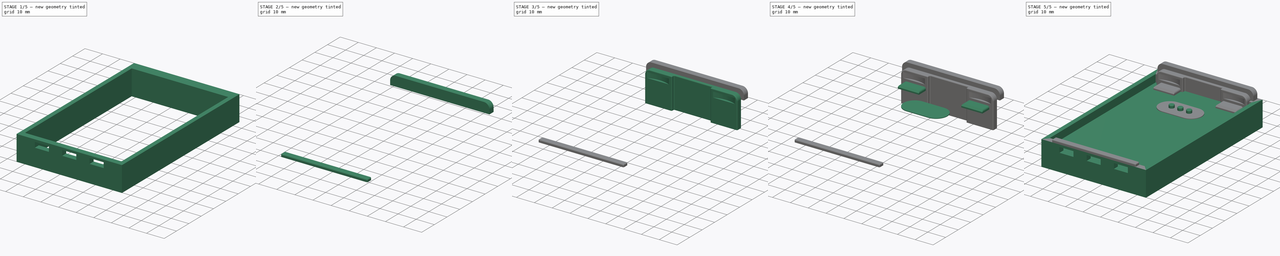
[diagram: build sequence overview — one tinted view per stage of 5, left to right]
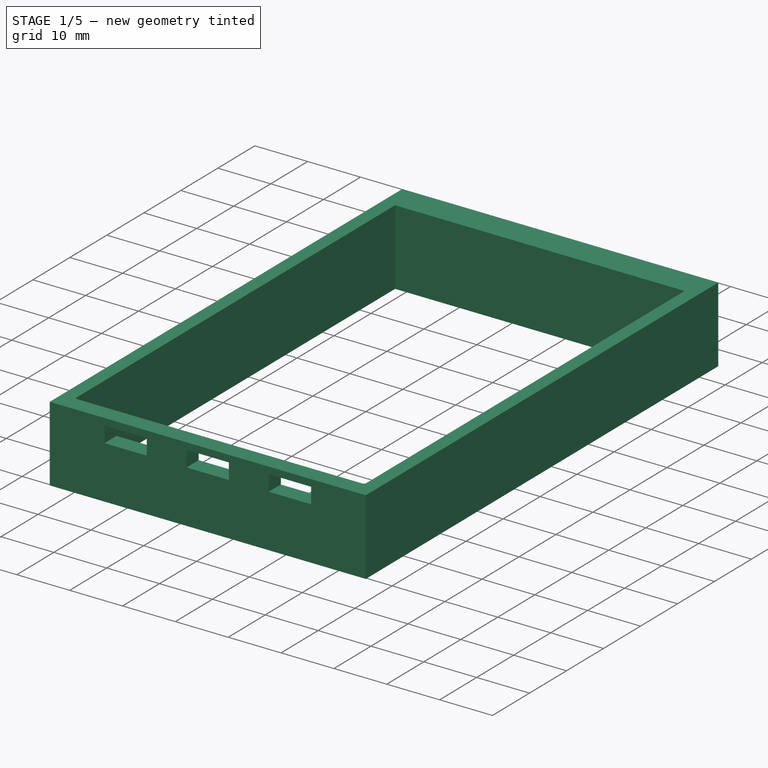
[diagram: stage 1 of 5 — iso view after this stage's code; geometry added in this stage tinted green]
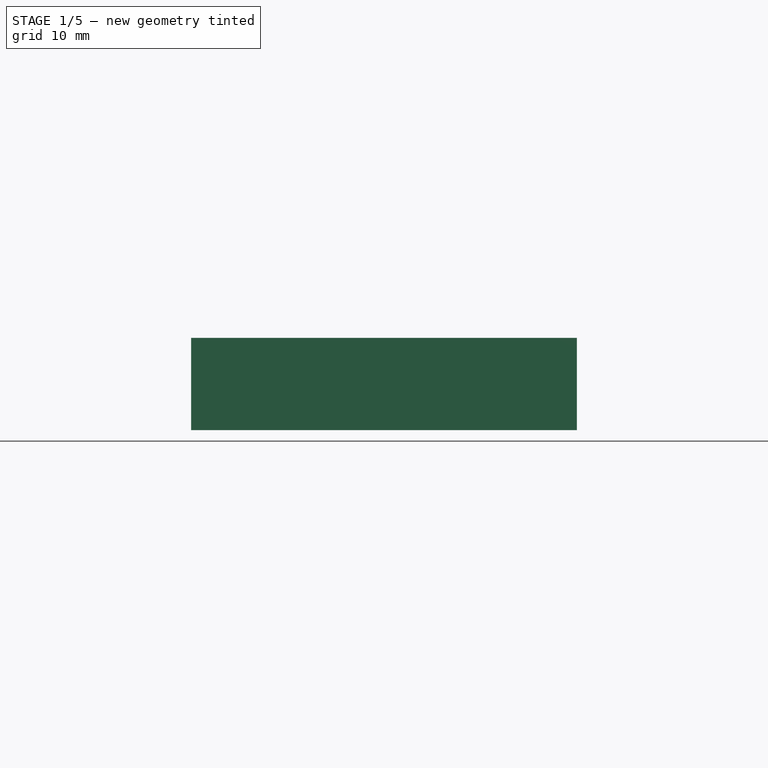
[diagram: stage 1 of 5 — front view after this stage's code; geometry added in this stage tinted green]
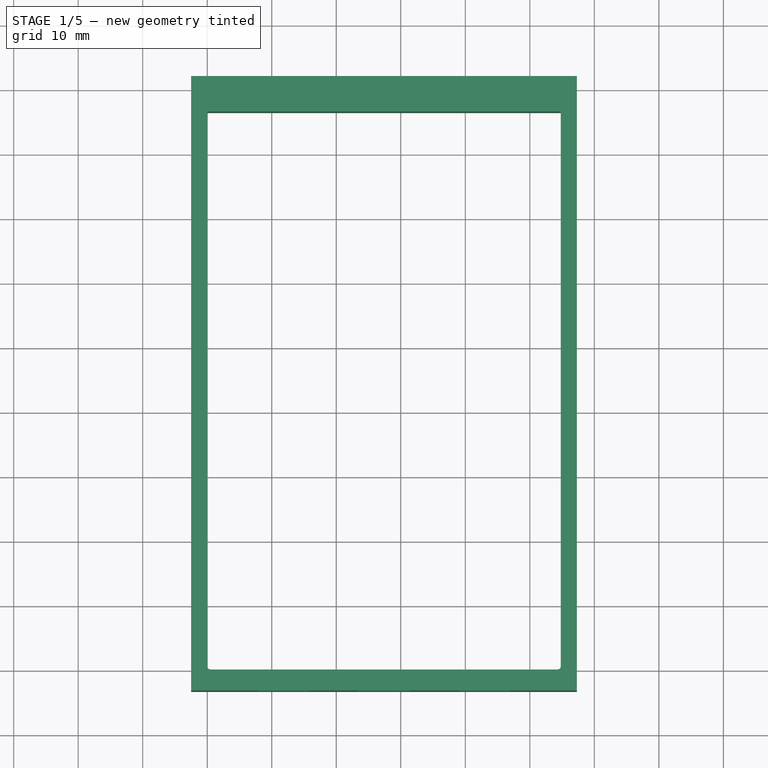
[diagram: stage 1 of 5 — top view after this stage's code; geometry added in this stage tinted green]
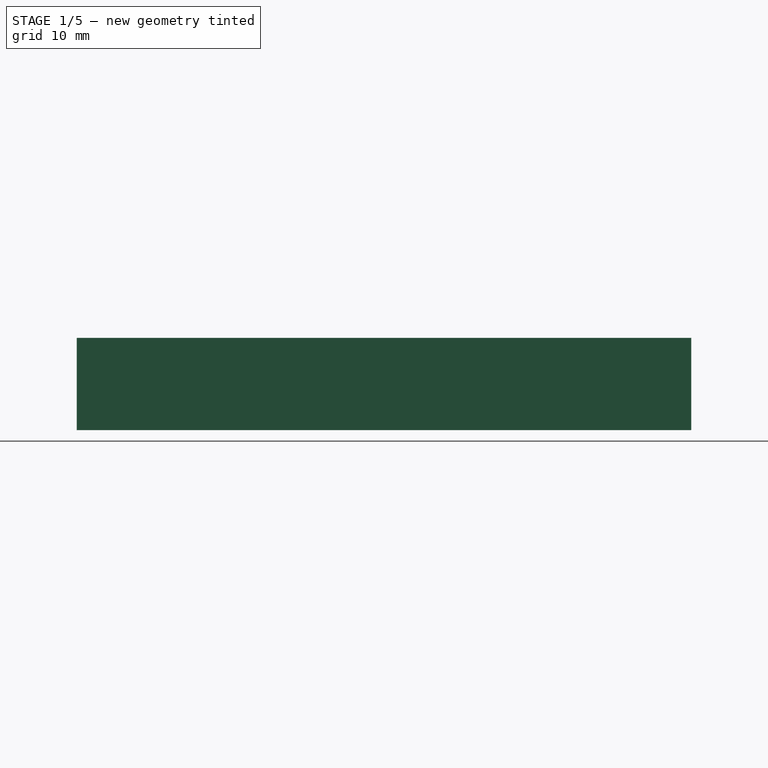
[diagram: stage 1 of 5 — right view after this stage's code; geometry added in this stage tinted green]
FCSTD DOCUMENT  (FreeCAD 0.19R24291 (Git))
Label: VX8Model
License: All rights reserved
LicenseURL: http://en.wikipedia.org/wiki/All_rights_reserved
objects: Part::Extrusion×11, Sketcher::SketchObject×10, Part::Fillet×7, Part::Cut×2, PartDesign::CoordinateSystem×2, Part::Chamfer×1, Part::Compound×1, PartDesign::FeatureBase×1, PartDesign::Body×1
note: 36 computed .brp shape members not serialized (recipe doc carries the construction recipe); baked Part::Feature solids carry a one-line shape summary decoded from their .brp

FEATURE [Sketcher::SketchObject] Sketch
  FullyConstrained = true
  sketch-geometry (4):
    g0: LineSegment StartX=0 StartY=0 StartZ=0 EndX=54.8 EndY=0 EndZ=0
    g1: LineSegment StartX=54.8 StartY=0 StartZ=0 EndX=54.8 EndY=86.5 EndZ=0
    g2: LineSegment StartX=54.8 StartY=86.5 StartZ=0 EndX=0 EndY=86.5 EndZ=0
    g3: LineSegment StartX=0 StartY=86.5 StartZ=0 EndX=0 EndY=0 EndZ=0
  constraints (11):
    c: Coincident(g0,g1)
    c: Coincident(g1,g2)
    c: Coincident(g2,g3)
    c: Coincident(g3,g0)
    c: Horizontal(g0)
    c: Horizontal(g2)
    c: Vertical(g1)
    c: Vertical(g3)
    c: Coincident(g0,g-1)
    c: DistanceY(g1,g1) = 86.5
    c: DistanceX(g0,g0) = 54.8
FEATURE [Part::Extrusion] Extrude
  Base = -> Sketch
  Dir = (0,0,1)
  DirMode = 2
  FaceMakerClass = Part::FaceMakerBullseye
  LengthFwd = 10
  LengthRev = 0
  Solid = true
  Symmetric = false
FEATURE [Sketcher::SketchObject] Sketch003
  ExternalGeometry = -> [Extrude]
  FullyConstrained = true
  MapMode = 5
  Placement = pos=(0,0,10) rot=(0,0,1;0rad)
  Support = -> [Extrude]
  sketch-geometry (8):
    g0: LineSegment StartX=-2.5 StartY=-3.25 StartZ=0 EndX=57.3 EndY=-3.25 EndZ=0
    g1: LineSegment StartX=57.3 StartY=-3.25 StartZ=0 EndX=57.3 EndY=92 EndZ=0
    g2: LineSegment StartX=57.3 StartY=92 StartZ=0 EndX=-2.5 EndY=92 EndZ=0
    g3: LineSegment StartX=-2.5 StartY=92 StartZ=0 EndX=-2.5 EndY=-3.25 EndZ=0
    g4: LineSegment StartX=0 StartY=0 StartZ=0 EndX=54.8 EndY=0 EndZ=0
    g5: LineSegment StartX=54.8 StartY=0 StartZ=0 EndX=54.8 EndY=86.5 EndZ=0
    g6: LineSegment StartX=54.8 StartY=86.5 StartZ=0 EndX=0 EndY=86.5 EndZ=0
    g7: LineSegment StartX=0 StartY=86.5 StartZ=0 EndX=0 EndY=0 EndZ=0
  constraints (22):
    c: Coincident(g0,g1)
    c: Coincident(g1,g2)
    c: Coincident(g2,g3)
    c: Coincident(g3,g0)
    c: Horizontal(g0)
    c: Horizontal(g2)
    c: Vertical(g1)
    c: Vertical(g3)
    c: Coincident(g4,g5)
    c: Coincident(g5,g6)
    c: Coincident(g6,g7)
    c: Coincident(g7,g4)
    c: Horizontal(g4)
    c: Horizontal(g6)
    c: Vertical(g5)
    c: Vertical(g7)
    c: Coincident(g4,g-1)
    c: Coincident(g5,g-3)
    c: DistanceY(g0,g4) = 3.25
    c: DistanceX(g0,g4) = 2.5
    c: DistanceX(g4,g0) = 2.5
    c: DistanceY(g5,g1) = 5.5
FEATURE [Part::Extrusion] Extrude004
  Base = -> Sketch003
  Dir = (0,0,1)
  DirMode = 2
  FaceMakerClass = Part::FaceMakerBullseye
  LengthFwd = 4.3
  LengthRev = 10
  Solid = true
  Symmetric = false
FEATURE [Sketcher::SketchObject] Sketch007
  ExternalGeometry = -> [Extrude004]
  FullyConstrained = true
  MapMode = 5
  Placement = pos=(0,0,0) rot=(0,0.707107,0.707107;3.14159rad)
  Support = -> [Extrude004]
  sketch-geometry (13):
    g0: GeomPoint X=-27.4 Y=0 Z=0
    g1: LineSegment StartX=-31.4 StartY=0 StartZ=0 EndX=-23.4 EndY=0 EndZ=0
    g2: LineSegment StartX=-23.4 StartY=0 StartZ=0 EndX=-23.4 EndY=3 EndZ=0
    g3: LineSegment StartX=-23.4 StartY=3 StartZ=0 EndX=-31.4 EndY=3 EndZ=0
    g4: LineSegment StartX=-31.4 StartY=3 StartZ=0 EndX=-31.4 EndY=0 EndZ=0
    g5: LineSegment StartX=-46.95 StartY=0 StartZ=0 EndX=-38.95 EndY=0 EndZ=0
    g6: LineSegment StartX=-38.95 StartY=0 StartZ=0 EndX=-38.95 EndY=3 EndZ=0
    g7: LineSegment StartX=-38.95 StartY=3 StartZ=0 EndX=-46.95 EndY=3 EndZ=0
    g8: LineSegment StartX=-46.95 StartY=3 StartZ=0 EndX=-46.95 EndY=0 EndZ=0
    g9: LineSegment StartX=-15.85 StartY=0 StartZ=0 EndX=-7.85 EndY=0 EndZ=0
    g10: LineSegment StartX=-7.85 StartY=0 StartZ=0 EndX=-7.85 EndY=3 EndZ=0
    g11: LineSegment StartX=-7.85 StartY=3 StartZ=0 EndX=-15.85 EndY=3 EndZ=0
    g12: LineSegment StartX=-15.85 StartY=3 StartZ=0 EndX=-15.85 EndY=0 EndZ=0
  constraints (35):
    c: Symmetric(g-5,g-6,g0)
    c: Coincident(g1,g2)
    c: Coincident(g2,g3)
    c: Coincident(g3,g4)
    c: Coincident(g4,g1)
    c: Horizontal(g1)
    c: Horizontal(g3)
    c: Vertical(g2)
    c: Vertical(g4)
    c: Coincident(g5,g6)
    c: Coincident(g6,g7)
    c: Coincident(g7,g8)
    c: Coincident(g8,g5)
    c: Horizontal(g5)
    c: Horizontal(g7)
    c: Vertical(g6)
    c: Vertical(g8)
    c: Coincident(g9,g10)
    c: Coincident(g10,g11)
    c: Coincident(g11,g12)
    c: Coincident(g12,g9)
    c: Horizontal(g9)
    c: Horizontal(g11)
    c: Vertical(g10)
    c: Vertical(g12)
    c: Horizontal(g-5,g5)
    c: Symmetric(g5,g9,g0)
    c: Symmetric(g1,g1,g0)
    c: Equal(g7,g3)
    c: Equal(g7,g11)
    c: Equal(g6,g4)
    c: Equal(g6,g12)
    c: DistanceX(g3,g3) = 8
    c: DistanceY(g2,g2) = 3
    c: DistanceX(g6,g11) = 23.1
FEATURE [Part::Extrusion] Extrude008
  Base = -> Sketch007
  Dir = (0,1,-2e-16)
  DirMode = 2
  FaceMakerClass = Part::FaceMakerBullseye
  LengthFwd = 2
  LengthRev = 10
  Placement = pos=(0,0,10) rot=(0,0,1;0rad)
  Solid = true
  Symmetric = false
FEATURE [Part::Cut] Cut001
  Base = -> Extrude004
  Tool = -> Extrude008
FEATURE [Part::Fillet] Fillet005
  Base = -> Cut001
  Edges = 2 edges r=0.5: [Edge57,Edge58]
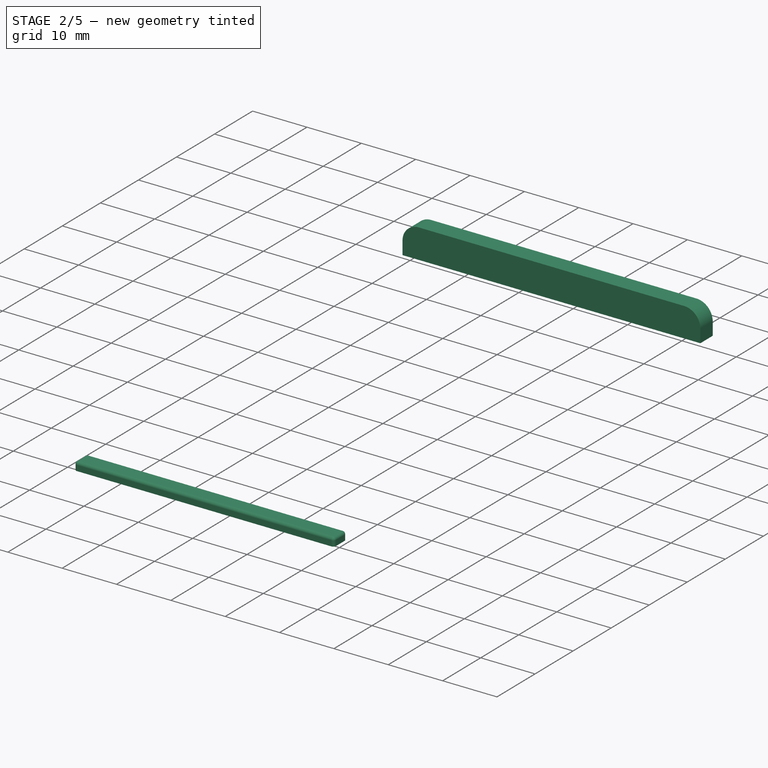
[diagram: stage 2 of 5 — iso view after this stage's code; geometry added in this stage tinted green]
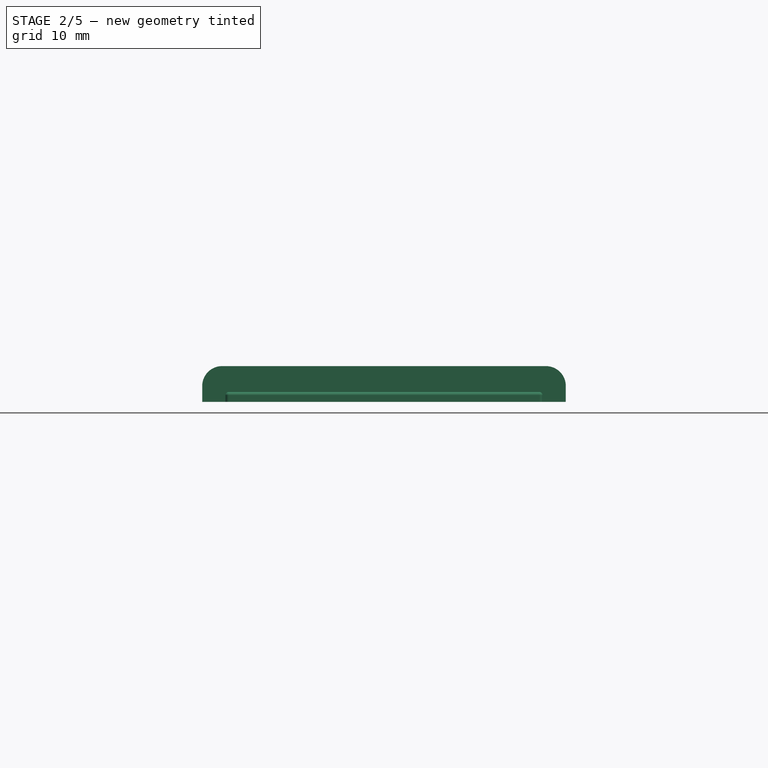
[diagram: stage 2 of 5 — front view after this stage's code; geometry added in this stage tinted green]
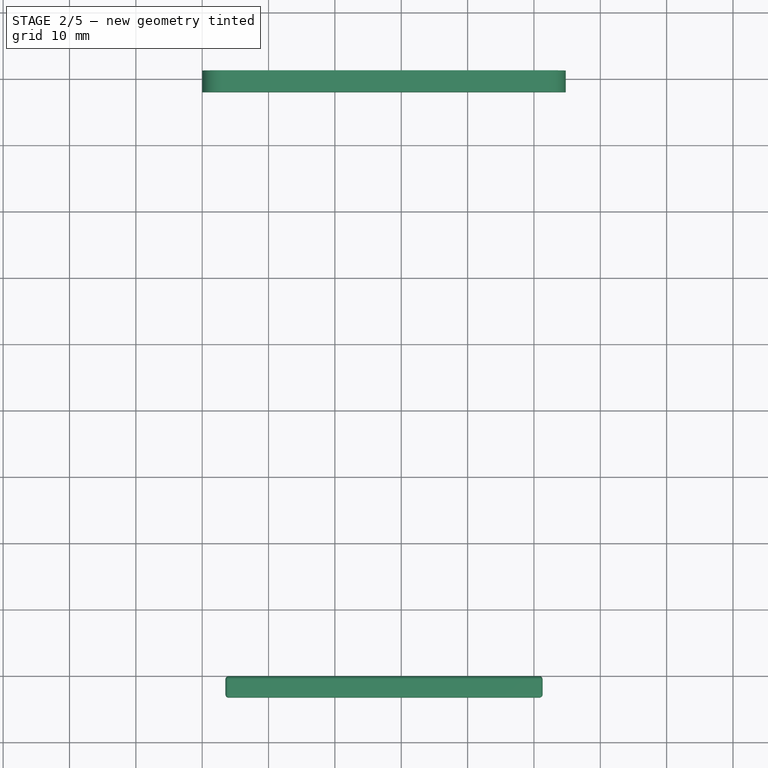
[diagram: stage 2 of 5 — top view after this stage's code; geometry added in this stage tinted green]
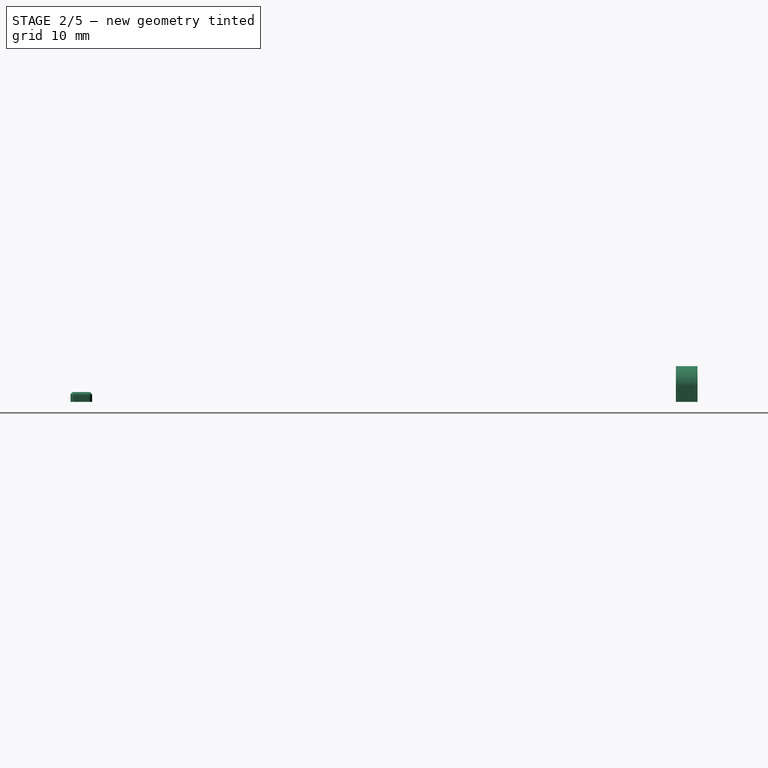
[diagram: stage 2 of 5 — right view after this stage's code; geometry added in this stage tinted green]
FEATURE [Sketcher::SketchObject] Sketch008
  ExternalGeometry = -> [Cut001]
  FullyConstrained = true
  MapMode = 5
  Placement = pos=(0,0,14.3) rot=(0,0,1;0rad)
  Support = -> [Cut001]
  sketch-geometry (5):
    g0: LineSegment StartX=3.5 StartY=0 StartZ=0 EndX=51.3 EndY=0 EndZ=0
    g1: LineSegment StartX=51.3 StartY=0 StartZ=0 EndX=51.3 EndY=-3.25 EndZ=0
    g2: LineSegment StartX=51.3 StartY=-3.25 StartZ=0 EndX=3.5 EndY=-3.25 EndZ=0
    g3: LineSegment StartX=3.5 StartY=-3.25 StartZ=0 EndX=3.5 EndY=0 EndZ=0
    g4: GeomPoint X=27.4 Y=0 Z=0
  constraints (12):
    c: Coincident(g0,g1)
    c: Coincident(g1,g2)
    c: Coincident(g2,g3)
    c: Coincident(g3,g0)
    c: Horizontal(g0)
    c: Horizontal(g2)
    c: Vertical(g1)
    c: Vertical(g3)
    c: DistanceX(g-1,g0) = 3.5
    c: Symmetric(g-3,g-1,g4)
    c: Symmetric(g0,g0,g4)
    c: Horizontal(g-4,g2)
FEATURE [Part::Extrusion] Extrude009
  Base = -> Sketch008
  Dir = (0,0,1)
  DirMode = 2
  FaceMakerClass = Part::FaceMakerBullseye
  LengthFwd = 1.5
  LengthRev = 0
  Solid = true
  Symmetric = false
FEATURE [Part::Fillet] Fillet004
  Base = -> Extrude009
  Edges = 8 edges r=0.5: [Edge1,Edge2,Edge4,Edge5,Edge7,Edge8,Edge10,Edge12]
FEATURE [Sketcher::SketchObject] Sketch009
  ExternalGeometry = -> [Fillet005]
  FullyConstrained = true
  MapMode = 5
  Placement = pos=(0,0,14.3) rot=(0,0,1;0rad)
  Support = -> [Fillet005]
  sketch-geometry (4):
    g0: LineSegment StartX=0 StartY=88 StartZ=0 EndX=54.8 EndY=88 EndZ=0
    g1: LineSegment StartX=54.8 StartY=88 StartZ=0 EndX=54.8 EndY=91.25 EndZ=0
    g2: LineSegment StartX=54.8 StartY=91.25 StartZ=0 EndX=0 EndY=91.25 EndZ=0
    g3: LineSegment StartX=0 StartY=91.25 StartZ=0 EndX=0 EndY=88 EndZ=0
  constraints (12):
    c: Coincident(g0,g1)
    c: Coincident(g1,g2)
    c: Coincident(g2,g3)
    c: Coincident(g3,g0)
    c: Horizontal(g0)
    c: Horizontal(g2)
    c: Vertical(g1)
    c: Vertical(g3)
    c: PointOnObject(g0,g-2)
    c: Vertical(g-4,g0)
    c: DistanceY(g-1,g0) = 88
    c: DistanceY(g3,g3) = 3.25
FEATURE [Part::Extrusion] Extrude010
  Base = -> Sketch009
  Dir = (0,0,1)
  DirMode = 2
  FaceMakerClass = Part::FaceMakerBullseye
  LengthFwd = 5.4
  LengthRev = 0
  Solid = true
  Symmetric = false
FEATURE [Part::Fillet] Fillet006
  Base = -> Extrude010
  Edges = 2 edges r=3: [Edge7,Edge12]
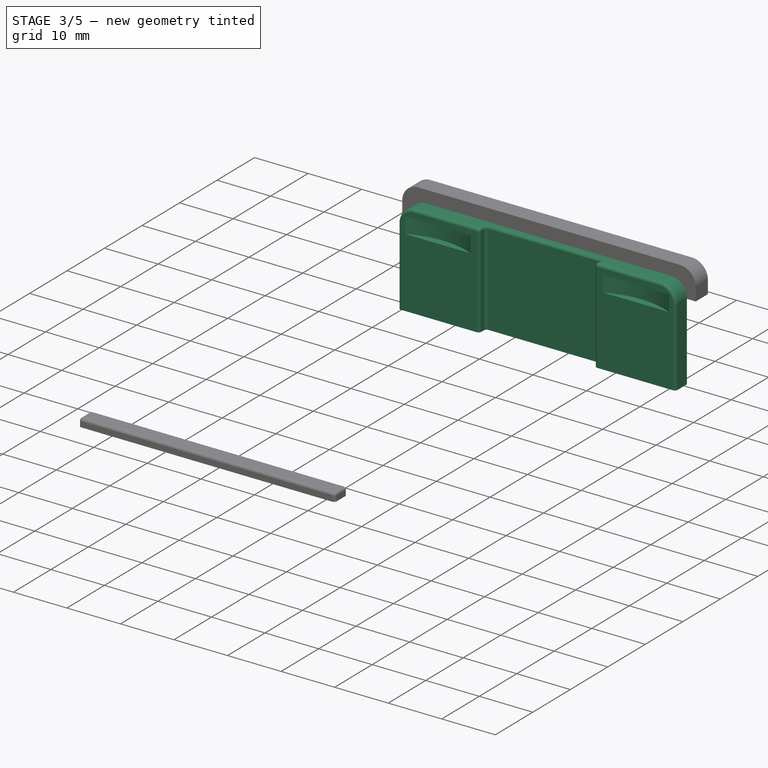
[diagram: stage 3 of 5 — iso view after this stage's code; geometry added in this stage tinted green]
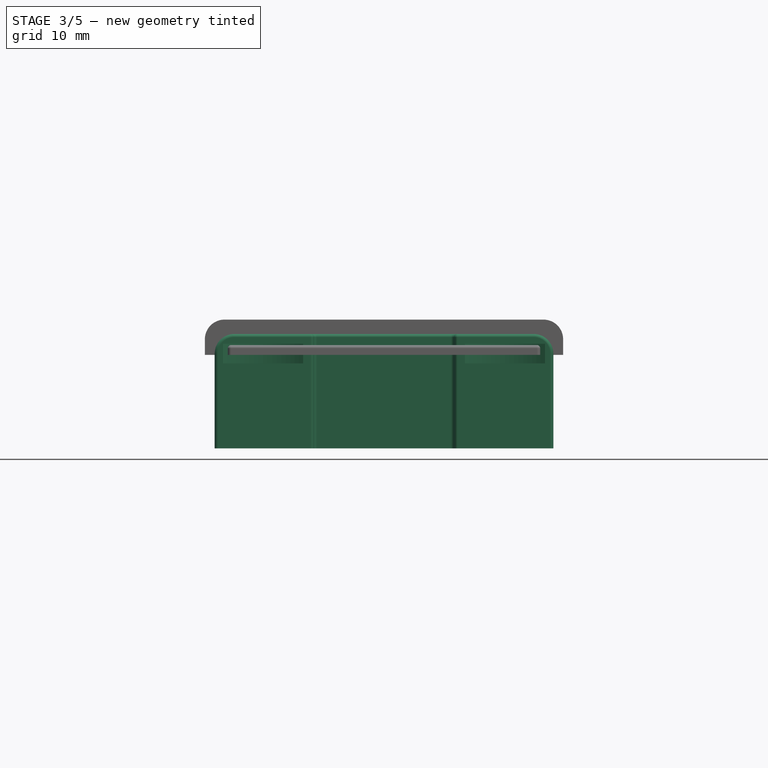
[diagram: stage 3 of 5 — front view after this stage's code; geometry added in this stage tinted green]
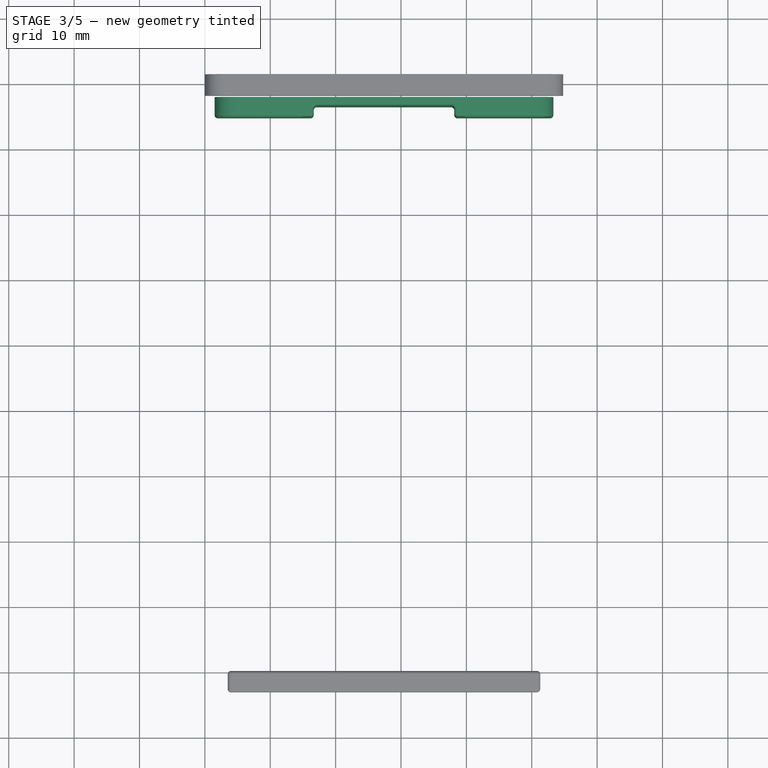
[diagram: stage 3 of 5 — top view after this stage's code; geometry added in this stage tinted green]
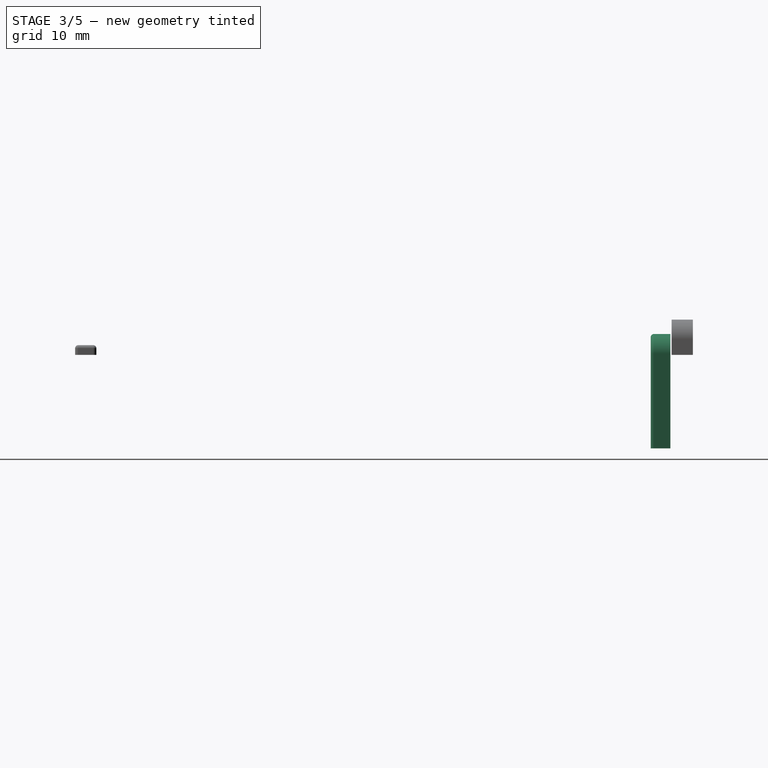
[diagram: stage 3 of 5 — right view after this stage's code; geometry added in this stage tinted green]
FEATURE [Sketcher::SketchObject] Sketch005
  ExternalGeometry = -> [Extrude]
  FullyConstrained = true
  MapMode = 5
  Placement = pos=(0,0,10) rot=(0,0,1;0rad)
  Support = -> [Extrude]
  sketch-geometry (10):
    g0: LineSegment StartX=53.3 StartY=84.8 StartZ=0 EndX=53.3 EndY=87.8 EndZ=0
    g1: LineSegment StartX=53.3 StartY=87.8 StartZ=0 EndX=1.5 EndY=87.8 EndZ=0
    g2: LineSegment StartX=1.5 StartY=84.8 StartZ=0 EndX=16.65 EndY=84.8 EndZ=0
    g3: LineSegment StartX=16.65 StartY=84.8 StartZ=0 EndX=16.65 EndY=86.5 EndZ=0
    g4: LineSegment StartX=16.65 StartY=86.5 StartZ=0 EndX=38.15 EndY=86.5 EndZ=0
    g5: LineSegment StartX=38.15 StartY=86.5 StartZ=0 EndX=38.15 EndY=84.8 EndZ=0
    g6: LineSegment StartX=38.15 StartY=84.8 StartZ=0 EndX=53.3 EndY=84.8 EndZ=0
    g7: GeomPoint X=27.4 Y=86.5 Z=0
    g8: LineSegment StartX=1.5 StartY=87.8 StartZ=0 EndX=1.5 EndY=84.8 EndZ=0
    g9: GeomPoint X=27.4 Y=87.8 Z=0
  constraints (25):
    c: Vertical(g0)
    c: Coincident(g0,g1)
    c: Horizontal(g1)
    c: Horizontal(g2)
    c: Coincident(g2,g3)
    c: Coincident(g3,g4)
    c: Horizontal(g4)
    c: Coincident(g4,g5)
    c: Vertical(g5)
    c: Coincident(g5,g6)
    c: Coincident(g6,g0)
    c: Horizontal(g6)
    c: Vertical(g3)
    c: DistanceY(g5,g5) = 1.7
    c: Horizontal(g5,g2)
    c: Symmetric(g3,g4,g7)
    c: DistanceX(g2,g5) = 21.5
    c: Coincident(g8,g1)
    c: Coincident(g8,g2)
    c: Vertical(g8)
    c: Vertical(g7,g9)
    c: Symmetric(g1,g0,g9)
    c: Symmetric(g-4,g-3,g7)
    c: DistanceX(g-4,g1) = 1.5
    c: DistanceY(g2,g1) = 3
FEATURE [Part::Extrusion] Extrude006
  Base = -> Sketch005
  Dir = (0,0,1)
  DirMode = 2
  FaceMakerClass = Part::FaceMakerBullseye
  LengthFwd = 7.5
  LengthRev = 10
  Solid = true
  Symmetric = false
FEATURE [Part::Fillet] Fillet002
  Base = -> Extrude006
  Edges = 2 edges r=3: [Edge4,Edge10]
FEATURE [Part::Fillet] Fillet003
  Base = -> Fillet002
  Edges = 13 edges r=0.5: [Edge1,Edge6,Edge7,Edge8,Edge21,Edge22,Edge23,Edge24,Edge25,Edge27,Edge28,Edge29,Edge30]
FEATURE [Sketcher::SketchObject] Sketch006
  ExternalGeometry = -> [Extrude]
  FullyConstrained = false
  MapMode = 5
  Placement = pos=(0,0,10) rot=(0,0,1;0rad)
  Support = -> [Extrude]
  sketch-geometry (10):
    g0: GeomPoint X=27.4 Y=86.5 Z=0
    g1: GeomPoint X=27.4 Y=71.5921 Z=0
    g2: ArcOfCircle CenterX=45.9 CenterY=71.5921 CenterZ=0 NormalX=0 NormalY=0 NormalZ=1 AngleXU=0 Radius=14.5587 StartAngle=1.11707 EndAngle=2.02452
    g3: ArcOfCircle CenterX=8.9 CenterY=71.5921 CenterZ=0 NormalX=0 NormalY=0 NormalZ=1 AngleXU=0 Radius=14.5587 StartAngle=1.11707 EndAngle=2.02452
    g4: LineSegment StartX=2.51864 StartY=84.6777 StartZ=0 EndX=2.51864 EndY=80.6777 EndZ=0
    g5: LineSegment StartX=2.51864 StartY=80.6777 StartZ=0 EndX=15.2814 EndY=80.6777 EndZ=0
    g6: LineSegment StartX=15.2814 StartY=80.6777 StartZ=0 EndX=15.2814 EndY=84.6777 EndZ=0
    g7: LineSegment StartX=39.5186 StartY=84.6777 StartZ=0 EndX=39.5186 EndY=80.6777 EndZ=0
    g8: LineSegment StartX=39.5186 StartY=80.6777 StartZ=0 EndX=52.2814 EndY=80.6777 EndZ=0
    g9: LineSegment StartX=52.2814 StartY=80.6777 StartZ=0 EndX=52.2814 EndY=84.6777 EndZ=0
  constraints (25):
    c: Symmetric(g-3,g-4,g0)
    c: Vertical(g1,g0)
    c: Symmetric(g3,g2,g1)
    c: Horizontal(g3,g3)
    c: Horizontal(g3,g2)
    c: Horizontal(g2,g2)
    c: Equal(g3,g2)
    c: Horizontal(g3,g2)
    c: DistanceX(g3,g2) = 37
    c: Coincident(g4,g3)
    c: Vertical(g4)
    c: Coincident(g5,g4)
    c: Horizontal(g5)
    c: Coincident(g6,g5)
    c: Coincident(g6,g3)
    c: Coincident(g7,g2)
    c: Coincident(g8,g7)
    c: Horizontal(g8)
    c: Coincident(g9,g8)
    c: Coincident(g9,g2)
    c: Vertical(g7)
    c: Vertical(g9)
    c: Vertical(g6)
    c: Equal(g6,g7)
    c: DistanceY(g6,g6) = 4
FEATURE [Part::Extrusion] Extrude007
  Base = -> Sketch006
  Dir = (0,0,1)
  DirMode = 2
  FaceMakerClass = Part::FaceMakerBullseye
  LengthFwd = 3
  LengthRev = 0
  Placement = pos=(0,0,3) rot=(0,0,1;0rad)
  Solid = true
  Symmetric = false
FEATURE [Part::Cut] Cut
  Base = -> Fillet003
  Tool = -> Extrude007
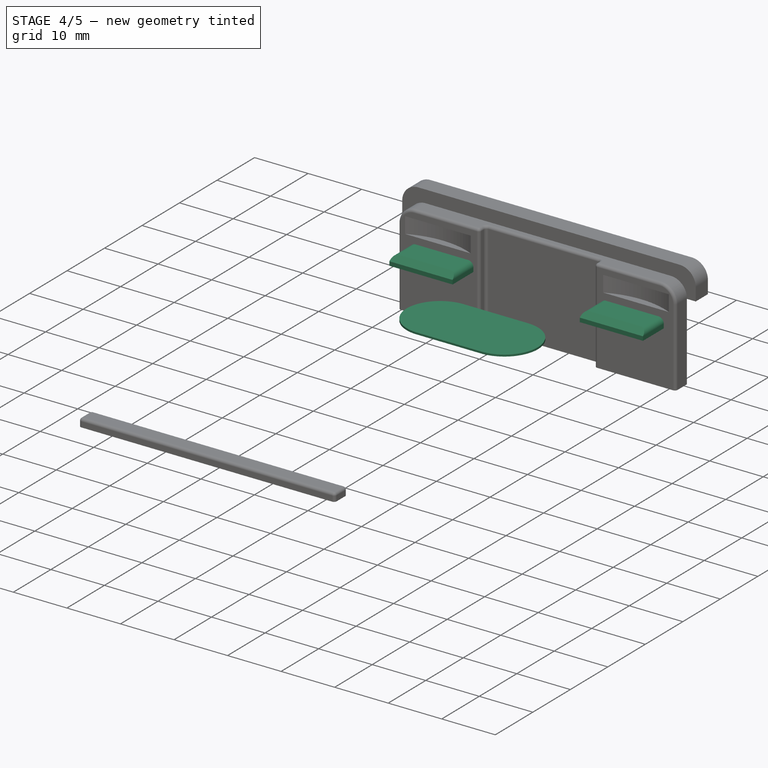
[diagram: stage 4 of 5 — iso view after this stage's code; geometry added in this stage tinted green]
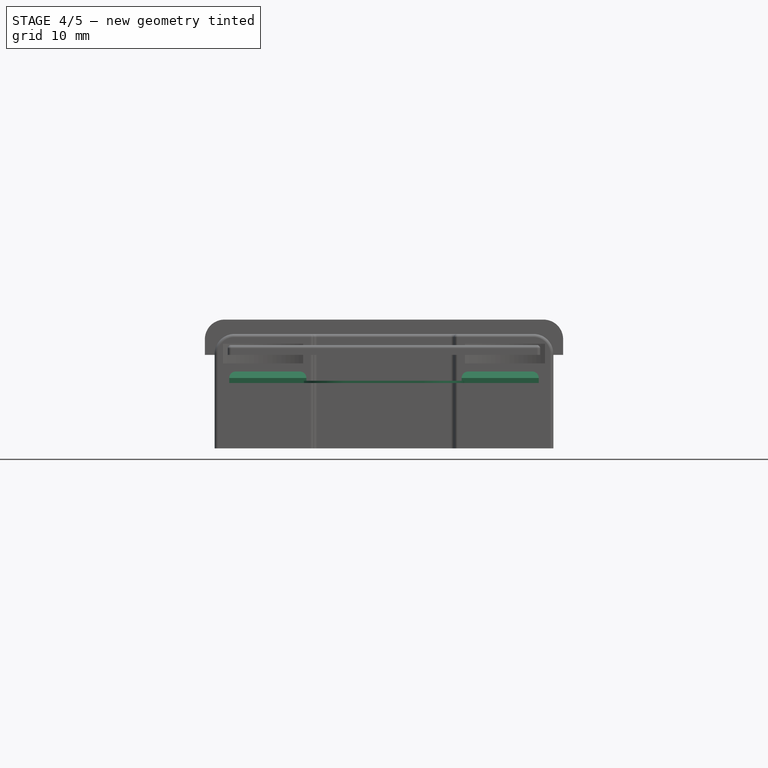
[diagram: stage 4 of 5 — front view after this stage's code; geometry added in this stage tinted green]
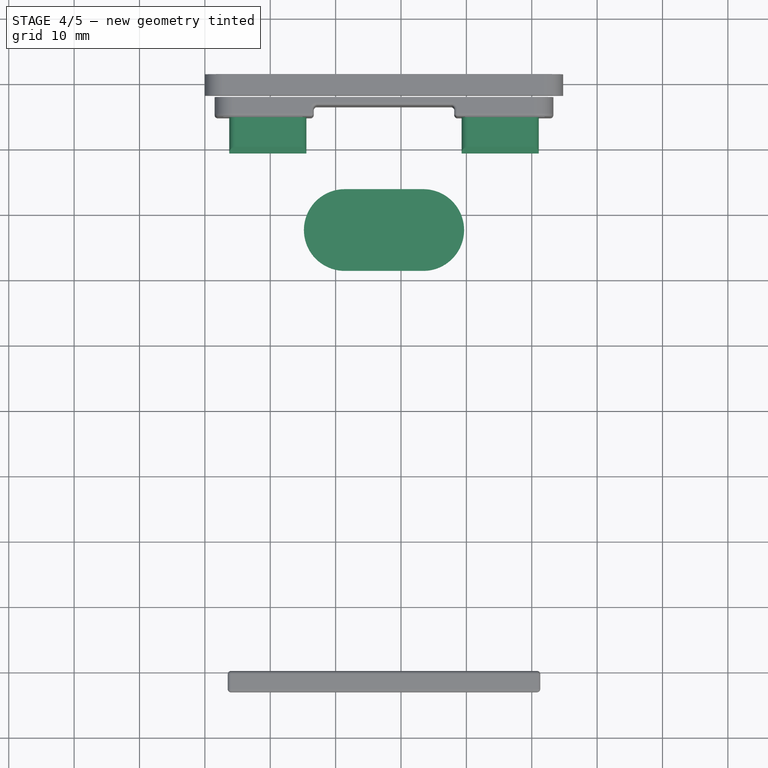
[diagram: stage 4 of 5 — top view after this stage's code; geometry added in this stage tinted green]
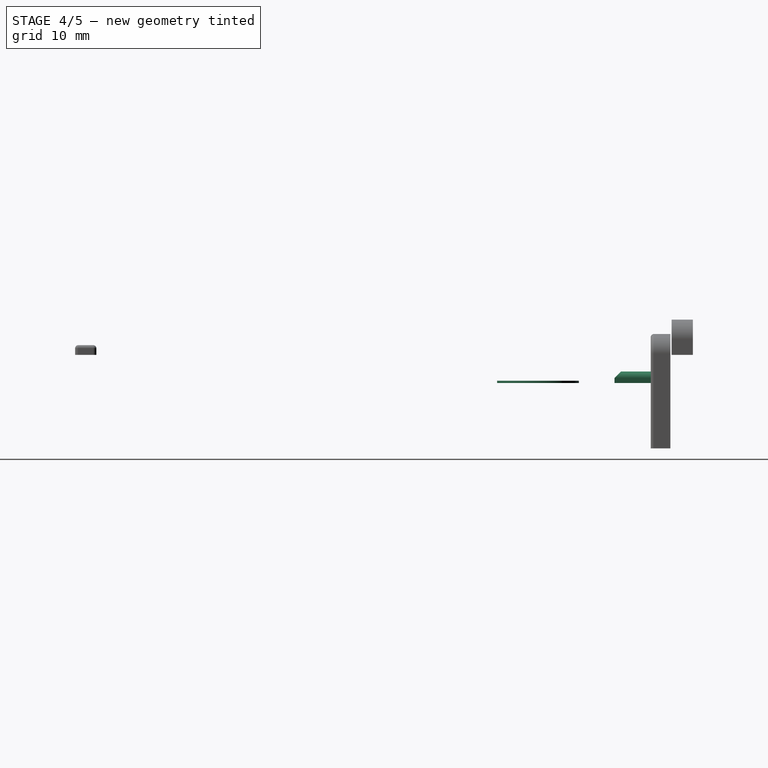
[diagram: stage 4 of 5 — right view after this stage's code; geometry added in this stage tinted green]
FEATURE [Part::Extrusion] Extrude002
  Base = -> Sketch001
  Dir = (0,0,1)
  DirMode = 2
  FaceMakerClass = Part::FaceMakerBullseye
  LengthFwd = 0.34
  LengthRev = 0
  Solid = true
  Symmetric = false
FEATURE [Sketcher::SketchObject] Sketch004
  ExternalGeometry = -> [Extrude004]
  FullyConstrained = true
  MapMode = 5
  Placement = pos=(0,0,10) rot=(0,0,1;0rad)
  Support = -> [Extrude]
  sketch-geometry (9):
    g0: LineSegment StartX=3.725 StartY=86.5 StartZ=0 EndX=15.525 EndY=86.5 EndZ=0
    g1: LineSegment StartX=15.525 StartY=86.5 StartZ=0 EndX=15.525 EndY=79.26 EndZ=0
    g2: LineSegment StartX=15.525 StartY=79.26 StartZ=0 EndX=3.725 EndY=79.26 EndZ=0
    g3: LineSegment StartX=3.725 StartY=79.26 StartZ=0 EndX=3.725 EndY=86.5 EndZ=0
    g4: LineSegment StartX=39.275 StartY=86.5 StartZ=0 EndX=51.075 EndY=86.5 EndZ=0
    g5: LineSegment StartX=51.075 StartY=86.5 StartZ=0 EndX=51.075 EndY=79.26 EndZ=0
    g6: LineSegment StartX=51.075 StartY=79.26 StartZ=0 EndX=39.275 EndY=79.26 EndZ=0
    g7: LineSegment StartX=39.275 StartY=79.26 StartZ=0 EndX=39.275 EndY=86.5 EndZ=0
    g8: GeomPoint X=27.4 Y=86.5 Z=0
  constraints (24):
    c: Coincident(g0,g1)
    c: Coincident(g1,g2)
    c: Coincident(g2,g3)
    c: Coincident(g3,g0)
    c: Horizontal(g0)
    c: Horizontal(g2)
    c: Vertical(g1)
    c: Vertical(g3)
    c: Coincident(g4,g5)
    c: Coincident(g5,g6)
    c: Coincident(g6,g7)
    c: Coincident(g7,g4)
    c: Horizontal(g4)
    c: Horizontal(g6)
    c: Vertical(g5)
    c: Vertical(g7)
    c: Horizontal(g-3,g0)
    c: DistanceY(g7,g7) = 7.24
    c: DistanceX(g6,g6) = 11.8
    c: Equal(g2,g6)
    c: Equal(g1,g5)
    c: Symmetric(g-3,g-4,g8)
    c: Symmetric(g0,g4,g8)
    c: DistanceX(g1,g6) = 23.75
FEATURE [Part::Extrusion] Extrude005
  Base = -> Sketch004
  Dir = (0,0,1)
  DirMode = 2
  FaceMakerClass = Part::FaceMakerBullseye
  LengthFwd = 1.76
  LengthRev = 0
  Solid = true
  Symmetric = false
FEATURE [Part::Chamfer] Chamfer
  Base = -> Extrude005
  Edges = 2 edges r=1: [Edge10,Edge22]
FEATURE [Part::Fillet] Fillet001
  Base = -> Chamfer
  Edges = 4 edges r=1: [Edge4,Edge14,Edge19,Edge29]
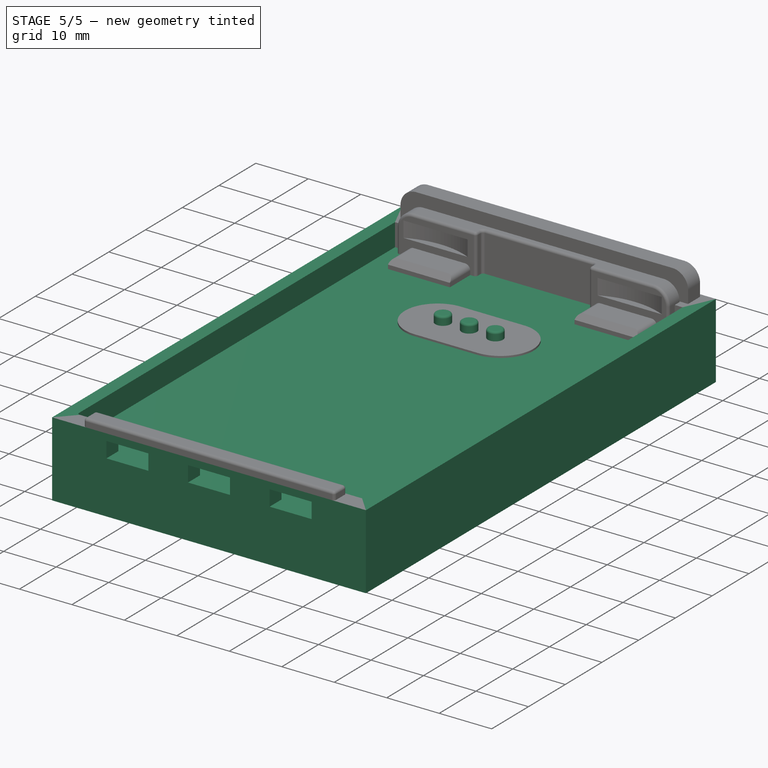
[diagram: stage 5 of 5 — iso view after this stage's code; geometry added in this stage tinted green]
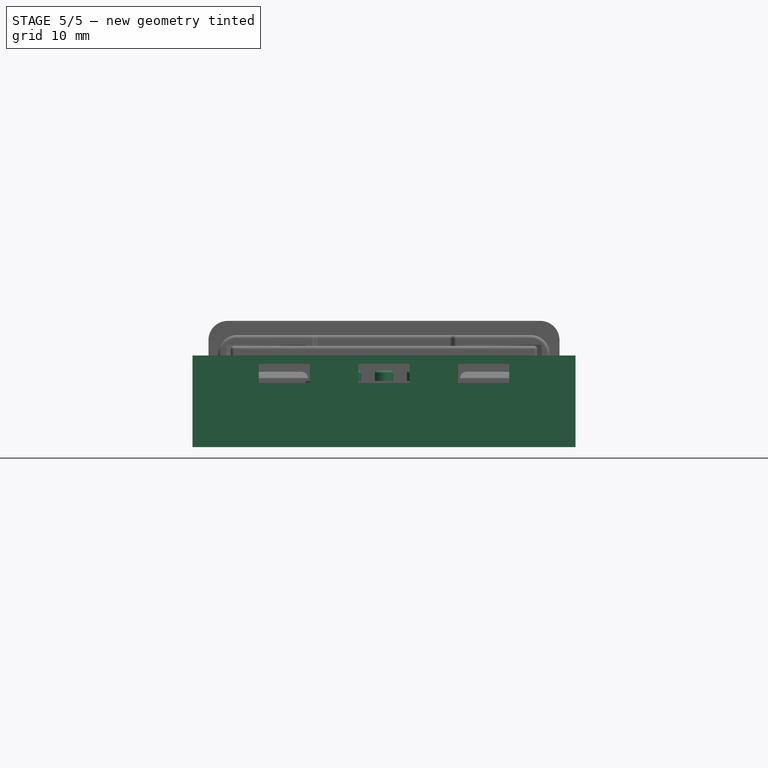
[diagram: stage 5 of 5 — front view after this stage's code; geometry added in this stage tinted green]
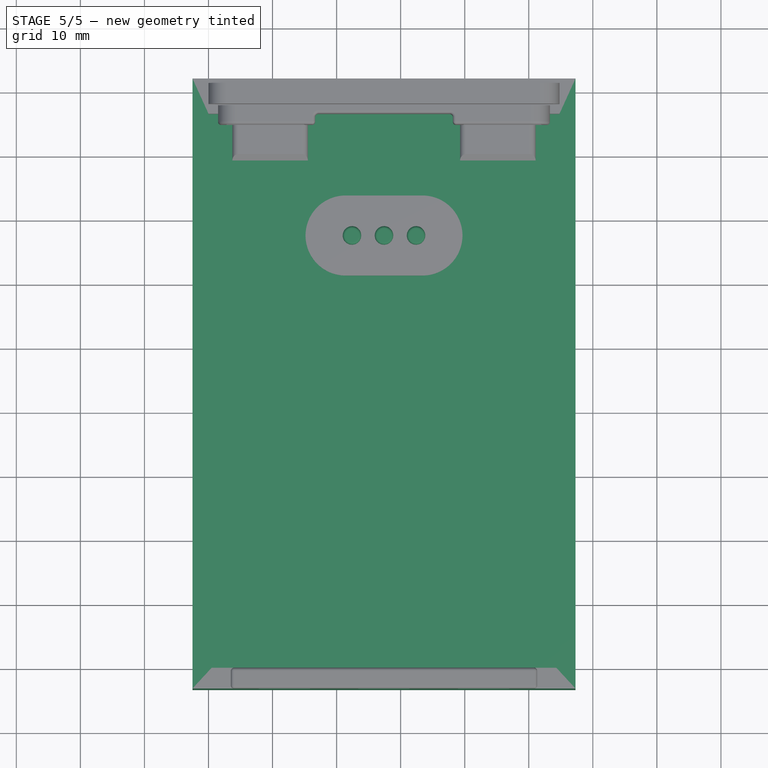
[diagram: stage 5 of 5 — top view after this stage's code; geometry added in this stage tinted green]
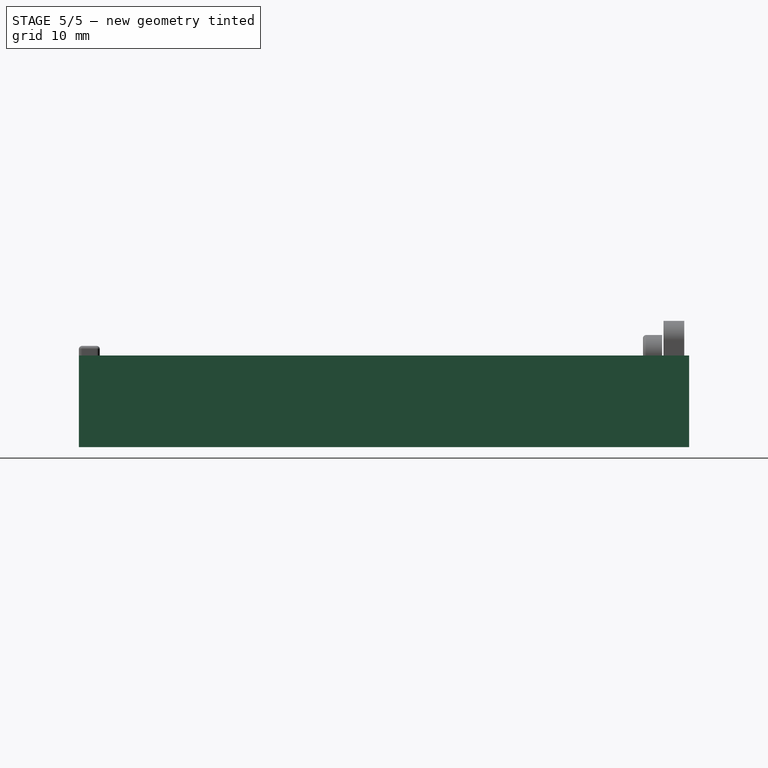
[diagram: stage 5 of 5 — right view after this stage's code; geometry added in this stage tinted green]
FEATURE [Sketcher::SketchObject] Sketch001
  ExternalGeometry = -> [Extrude]
  FullyConstrained = true
  MapMode = 5
  Placement = pos=(0,0,10) rot=(0,0,1;0rad)
  Support = -> [Extrude]
  expr: Constraints[13] = 12.7mm
  sketch-geometry (4):
    g0: ArcOfCircle CenterX=21.4 CenterY=67.55 CenterZ=0 NormalX=0 NormalY=0 NormalZ=1 AngleXU=0 Radius=6.25 StartAngle=1.5708 EndAngle=4.71239
    g1: ArcOfCircle CenterX=33.4 CenterY=67.55 CenterZ=0 NormalX=0 NormalY=0 NormalZ=1 AngleXU=0 Radius=6.25 StartAngle=4.71239 EndAngle=7.85398
    g2: LineSegment StartX=21.4 StartY=73.8 StartZ=0 EndX=33.4 EndY=73.8 EndZ=0
    g3: LineSegment StartX=33.4 StartY=61.3 StartZ=0 EndX=21.4 EndY=61.3 EndZ=0
  constraints (14):
    c: Coincident(g2,g0)
    c: Coincident(g2,g1)
    c: Coincident(g3,g1)
    c: Coincident(g3,g0)
    c: Horizontal(g3)
    c: Horizontal(g0,g1)
    c: Horizontal(g0,g1)
    c: Vertical(g0,g0)
    c: Vertical(g1,g1)
    c: Vertical(g0,g0)
    c: DistanceY(g1,g1) = 12.5
    c: DistanceX(g0,g1) = 12
    c: DistanceX(g1,g-4) = 21.4
    c: DistanceY(g0,g-3) = 12.7
FEATURE [Part::Extrusion] Extrude001
  Base = -> Sketch001
  Dir = (0,0,1)
  DirMode = 2
  FaceMakerClass = Part::FaceMakerBullseye
  LengthFwd = 0.34
  LengthRev = 0
  Solid = true
  Symmetric = false
FEATURE [Sketcher::SketchObject] Sketch002
  ExternalGeometry = -> [Extrude002]
  FullyConstrained = true
  MapMode = 5
  Placement = pos=(0,0,10.34) rot=(0,0,1;0rad)
  Support = -> [Extrude002]
  sketch-geometry (3):
    g0: Circle CenterX=27.4 CenterY=67.55 CenterZ=0 NormalX=0 NormalY=0 NormalZ=1 AngleXU=0 Radius=1.44
    g1: Circle CenterX=32.4 CenterY=67.55 CenterZ=0 NormalX=0 NormalY=0 NormalZ=1 AngleXU=0 Radius=1.44
    g2: Circle CenterX=22.4 CenterY=67.55 CenterZ=0 NormalX=0 NormalY=0 NormalZ=1 AngleXU=0 Radius=1.44
  constraints (8):
    c: Horizontal(g2,g0)
    c: Horizontal(g0,g1)
    c: Radius(g2) = 1.44
    c: Equal(g2,g0)
    c: Equal(g1,g2)
    c: Symmetric(g-4,g-3,g0)
    c: DistanceX(g2,g0) = 5
    c: DistanceX(g0,g1) = 5
FEATURE [Part::Extrusion] Extrude003
  Base = -> Sketch002
  Dir = (0,0,1)
  DirMode = 2
  FaceMakerClass = Part::FaceMakerBullseye
  LengthFwd = 1.62
  LengthRev = 0
  Solid = true
  Symmetric = false
FEATURE [Part::Fillet] Fillet
  Base = -> Extrude003
  Edges = 3 edges r=0.4: [Edge3,Edge6,Edge9]
FEATURE [Part::Compound] Compound
  Links = -> [Extrude,Extrude001,Extrude002,Fillet,Fillet001,Cut,Fillet004,Fillet005,Fillet006]
FEATURE [PartDesign::FeatureBase] BaseFeature
  BaseFeature = -> Compound
FEATURE [PartDesign::CoordinateSystem] Local_CS
  AttacherType = Attacher::AttachEngine3D
  MapMode = 1
  Placement = pos=(-2.5,-3.25,0) rot=(0,0,1;0rad)
  Support = -> [BaseFeature]
FEATURE [PartDesign::CoordinateSystem] Local_CS001  label="centerPin-PCB"
  AttacherType = Attacher::AttachEngine3D
  MapMode = 11
  Placement = pos=(27.4,67.55,11.56) rot=(0,0,1;1.5708rad)
  Support = -> [BaseFeature]
FEATURE [PartDesign::Body] Body  label="VX8BatteryBay"
  BaseFeature = -> Compound
  Group = -> [BaseFeature,Local_CS,Local_CS001]
  Origin = -> Origin
  Tip = -> BaseFeature
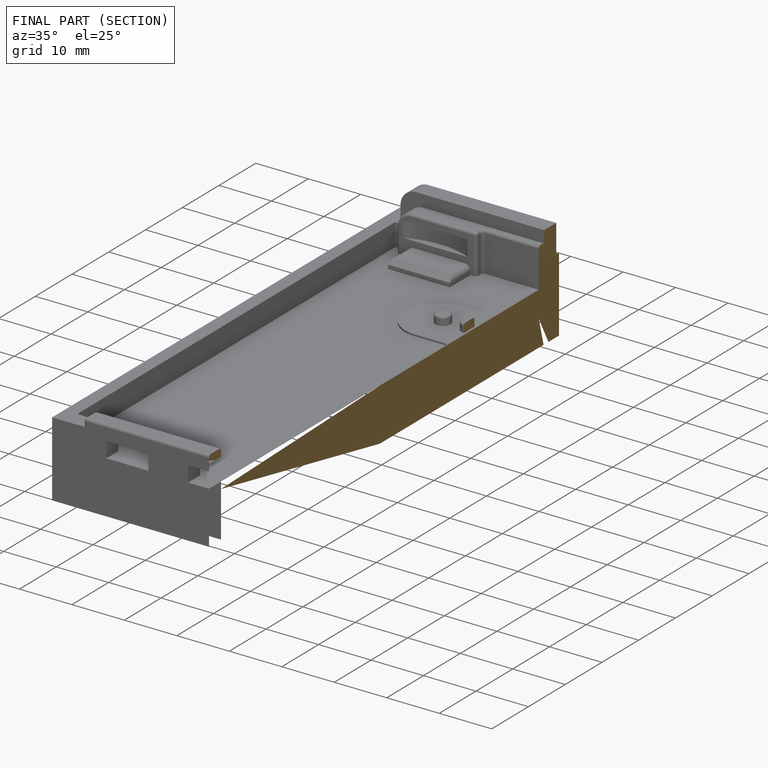
[diagram: finished part — half-section view (interior)]
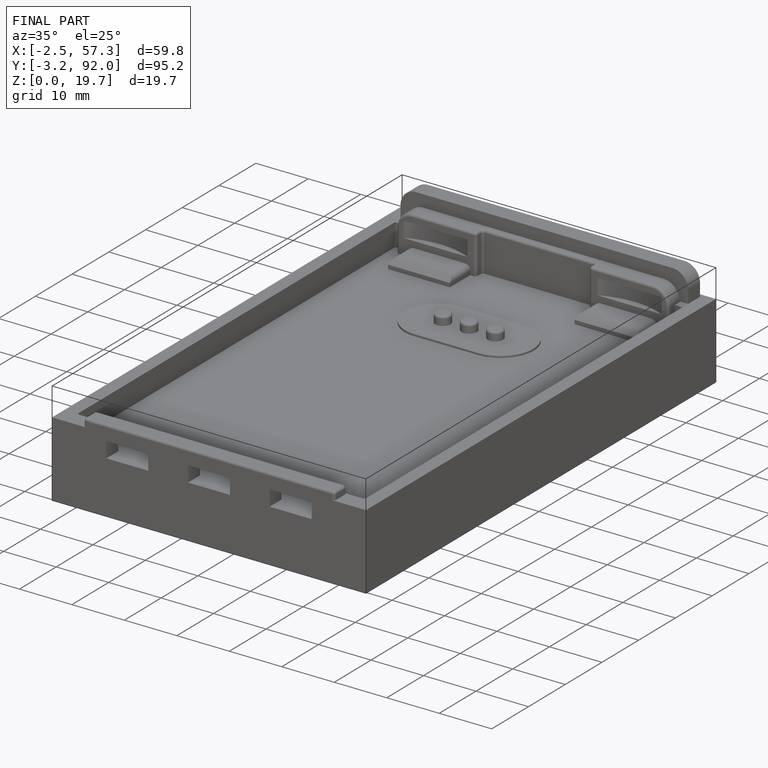
[diagram: finished part — iso view with bounding-box wireframe]
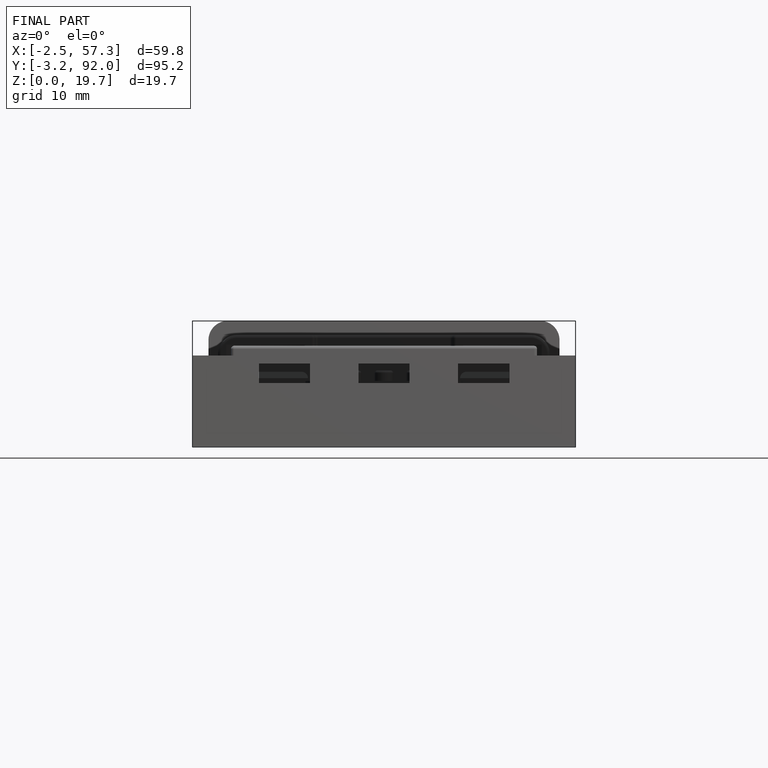
[diagram: finished part — front view with bounding-box wireframe]
